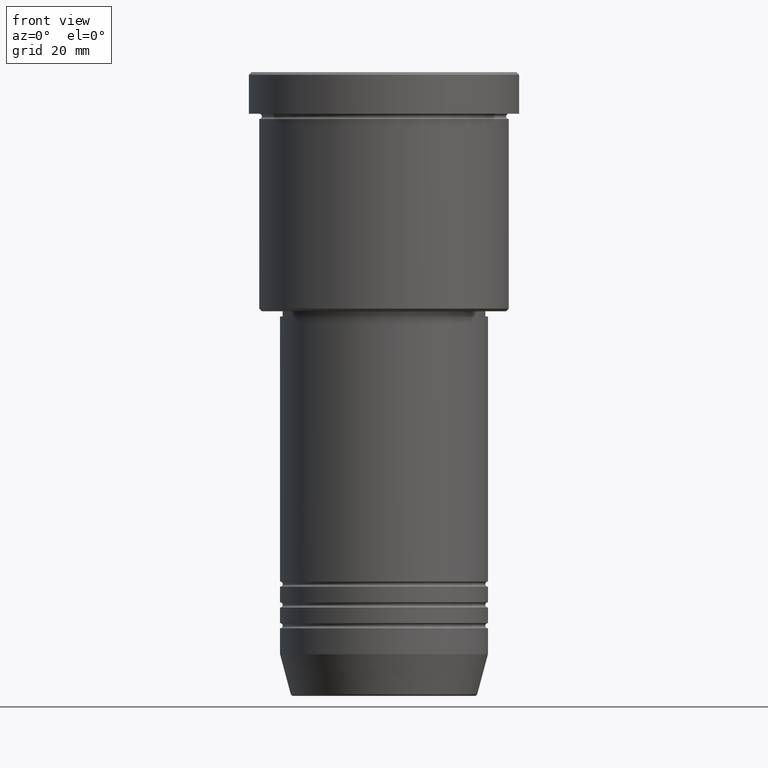
[diagram: clean part render]
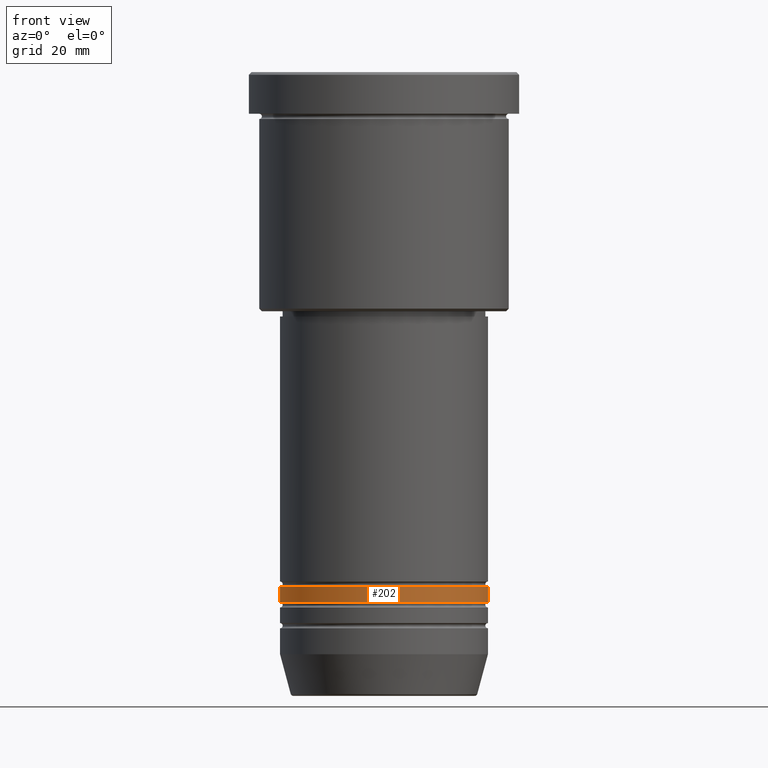
[diagram: same view with one face highlighted and labeled with its STEP entity id]
A machine part, front view. The second image highlights one B-rep face of the part: STEP entity #202.
In plain terms, the highlighted cylindrical surface (partial cylindrical patch) has radius 20 mm, axis along (-0, -0, 1).
Its self-contained STEP definition (entity closure, byte-faithful):
#30 = CARTESIAN_POINT ( 'NONE',  ( 0.000000000000000000, 0.000000000000000000, -98.99999999999997158 ) ) ;
#64 = DIRECTION ( 'NONE',  ( -0.000000000000000000, -0.000000000000000000, 1.000000000000000000 ) ) ;
#76 = VERTEX_POINT ( 'NONE', #901 ) ;
#89 = CIRCLE ( 'NONE', #814, 20.00000000000000355 ) ;
#102 = ORIENTED_EDGE ( 'NONE', *, *, #898, .T. ) ;
#115 = EDGE_CURVE ( 'NONE', #824, #526, #342, .T. ) ;
#124 = ORIENTED_EDGE ( 'NONE', *, *, #789, .T. ) ;
#127 = CYLINDRICAL_SURFACE ( 'NONE', #945, 20.00000000000000355 ) ;
#178 = VECTOR ( 'NONE', #1166, 1000.000000000000000 ) ;
#202 = ADVANCED_FACE ( 'NONE', ( #668 ), #127, .T. ) ;
#228 = LINE ( 'NONE', #1063, #757 ) ;
#301 = EDGE_CURVE ( 'NONE', #388, #824, #429, .T. ) ;
#341 = DIRECTION ( 'NONE',  ( -0.000000000000000000, -0.000000000000000000, 1.000000000000000000 ) ) ;
#342 = CIRCLE ( 'NONE', #636, 20.00000000000000000 ) ;
#388 = VERTEX_POINT ( 'NONE', #625 ) ;
#429 = LINE ( 'NONE', #795, #178 ) ;
#475 = DIRECTION ( 'NONE',  ( -0.000000000000000000, -0.000000000000000000, 1.000000000000000000 ) ) ;
#488 = DIRECTION ( 'NONE',  ( 1.000000000000000000, 0.000000000000000000, 0.000000000000000000 ) ) ;
#526 = VERTEX_POINT ( 'NONE', #812 ) ;
#625 = CARTESIAN_POINT ( 'NONE',  ( -20.00000000000000355, 2.449293598294706907E-15, -101.9999999999999858 ) ) ;
#636 = AXIS2_PLACEMENT_3D ( 'NONE', #30, #475, #657 ) ;
#657 = DIRECTION ( 'NONE',  ( 1.000000000000000000, 0.000000000000000000, 0.000000000000000000 ) ) ;
#668 = FACE_OUTER_BOUND ( 'NONE', #921, .T. ) ;
#687 = DIRECTION ( 'NONE',  ( 1.000000000000000000, 0.000000000000000000, 0.000000000000000000 ) ) ;
#757 = VECTOR ( 'NONE', #64, 1000.000000000000000 ) ;
#789 = EDGE_CURVE ( 'NONE', #76, #526, #228, .T. ) ;
#795 = CARTESIAN_POINT ( 'NONE',  ( -20.00000000000000355, 2.449293598294706907E-15, 0.000000000000000000 ) ) ;
#812 = CARTESIAN_POINT ( 'NONE',  ( 20.00000000000000000, 0.000000000000000000, -98.99999999999997158 ) ) ;
#814 = AXIS2_PLACEMENT_3D ( 'NONE', #1167, #341, #687 ) ;
#824 = VERTEX_POINT ( 'NONE', #891 ) ;
#891 = CARTESIAN_POINT ( 'NONE',  ( -20.00000000000000000, 2.449293598294706513E-15, -98.99999999999997158 ) ) ;
#898 = EDGE_CURVE ( 'NONE', #388, #76, #89, .T. ) ;
#901 = CARTESIAN_POINT ( 'NONE',  ( 20.00000000000000355, 0.000000000000000000, -101.9999999999999858 ) ) ;
#921 = EDGE_LOOP ( 'NONE', ( #1155, #102, #124, #1048 ) ) ;
#945 = AXIS2_PLACEMENT_3D ( 'NONE', #1044, #1033, #488 ) ;
#1033 = DIRECTION ( 'NONE',  ( -0.000000000000000000, -0.000000000000000000, 1.000000000000000000 ) ) ;
#1044 = CARTESIAN_POINT ( 'NONE',  ( 0.000000000000000000, 0.000000000000000000, 0.000000000000000000 ) ) ;
#1048 = ORIENTED_EDGE ( 'NONE', *, *, #115, .F. ) ;
#1063 = CARTESIAN_POINT ( 'NONE',  ( 20.00000000000000355, 0.000000000000000000, 0.000000000000000000 ) ) ;
#1155 = ORIENTED_EDGE ( 'NONE', *, *, #301, .F. ) ;
#1166 = DIRECTION ( 'NONE',  ( -0.000000000000000000, -0.000000000000000000, 1.000000000000000000 ) ) ;
#1167 = CARTESIAN_POINT ( 'NONE',  ( 0.000000000000000000, 0.000000000000000000, -101.9999999999999858 ) ) ;